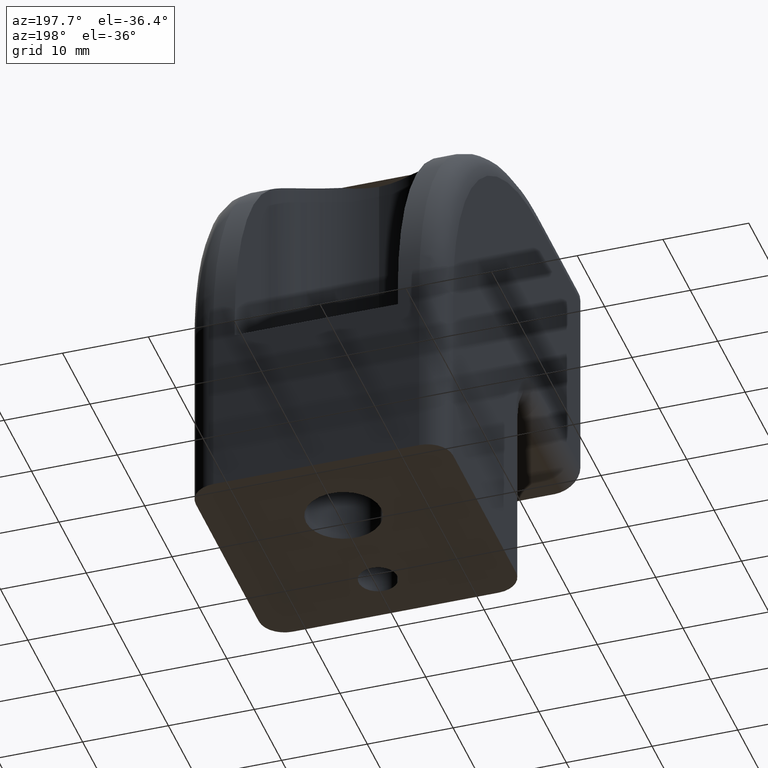
[diagram: clean part render]
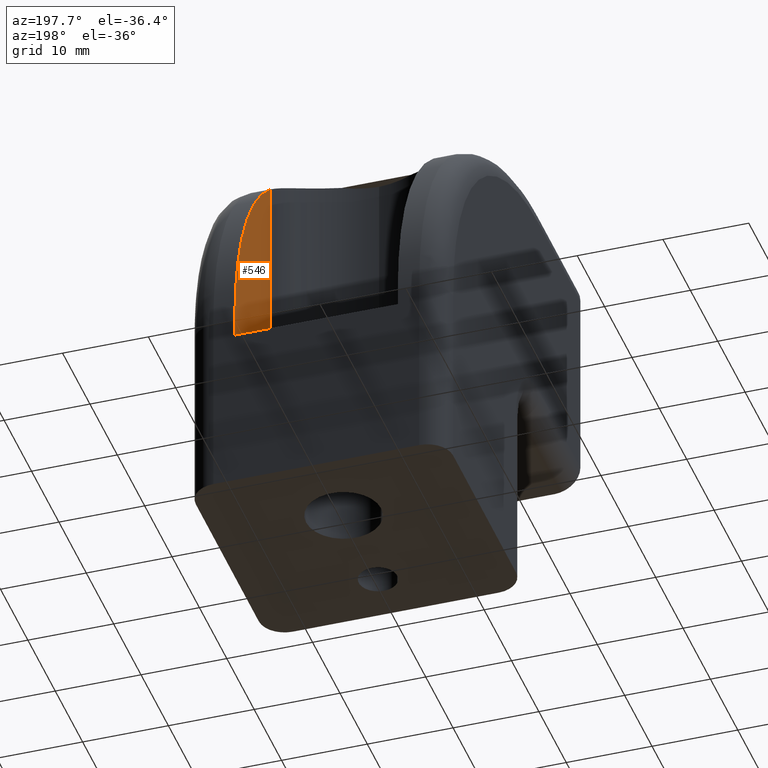
[diagram: same view with one face highlighted and labeled with its STEP entity id]
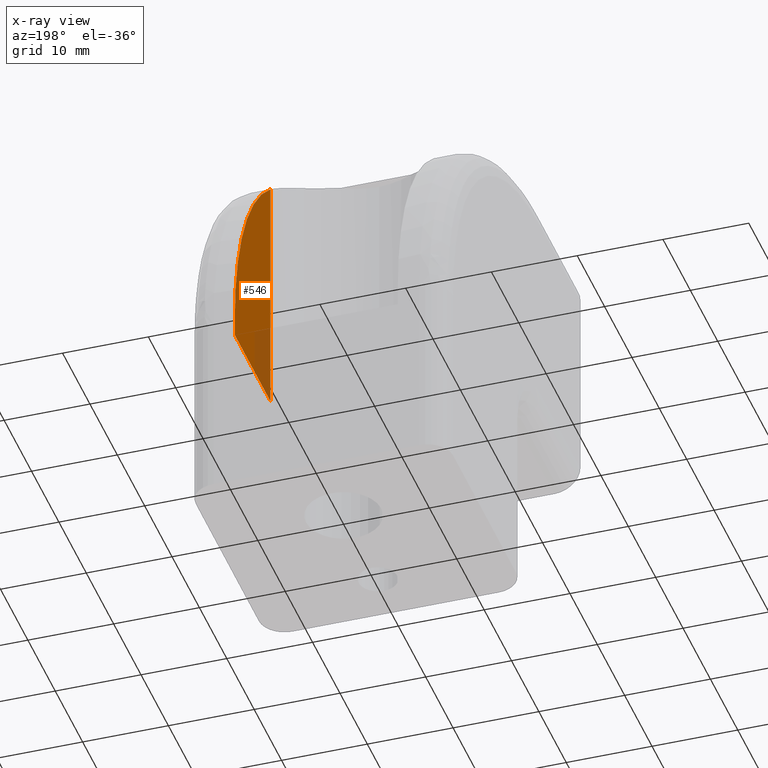
[diagram: x-ray of the same camera — body ghosted, the highlighted face saturated]
A machine part, auxiliary view. The second image highlights one B-rep face of the part: STEP entity #546.
The next image is the same camera in x-ray: the body ghosted, the highlighted face saturated — about 17% of this face is hidden behind the body in this view.
In plain terms, the highlighted planar face has unit normal (-1, 0, 0).
Its self-contained STEP definition (entity closure, byte-faithful):
#34=LINE('',#856,#72);
#36=LINE('',#862,#74);
#38=LINE('',#877,#76);
#72=VECTOR('',#670,13.);
#74=VECTOR('',#676,29.2213151776324);
#76=VECTOR('',#684,2.00000000000004);
#128=FACE_OUTER_BOUND('',#164,.T.);
#164=EDGE_LOOP('',(#393,#394,#395,#396));
#208=CIRCLE('',#591,35.);
#247=VERTEX_POINT('',#853);
#248=VERTEX_POINT('',#855);
#250=VERTEX_POINT('',#861);
#252=VERTEX_POINT('',#876);
#301=EDGE_CURVE('',#248,#247,#34,.T.);
#304=EDGE_CURVE('',#250,#247,#36,.T.);
#308=EDGE_CURVE('',#252,#248,#38,.T.);
#309=EDGE_CURVE('',#252,#250,#208,.T.);
#393=ORIENTED_EDGE('',*,*,#308,.T.);
#394=ORIENTED_EDGE('',*,*,#301,.T.);
#395=ORIENTED_EDGE('',*,*,#304,.F.);
#396=ORIENTED_EDGE('',*,*,#309,.F.);
#529=PLANE('',#590);
#546=ADVANCED_FACE('',(#128),#529,.T.);
#590=AXIS2_PLACEMENT_3D('',#875,#682,#683);
#591=AXIS2_PLACEMENT_3D('',#878,#685,#686);
#670=DIRECTION('',(0.,-1.,0.));
#676=DIRECTION('',(0.,0.,-1.));
#682=DIRECTION('center_axis',(-1.,0.,0.));
#683=DIRECTION('ref_axis',(0.,0.,1.));
#684=DIRECTION('',(0.,0.,-1.));
#685=DIRECTION('center_axis',(1.,0.,0.));
#686=DIRECTION('ref_axis',(0.,-1.,0.));
#853=CARTESIAN_POINT('',(9.49999999999979,-3.00499999999738,20.));
#855=CARTESIAN_POINT('',(9.5,9.99500000000262,20.));
#856=CARTESIAN_POINT('',(9.5,9.99500000000262,20.));
#861=CARTESIAN_POINT('',(9.49999999999979,-3.00499999999738,49.2213151776324));
#862=CARTESIAN_POINT('',(9.49999999999979,-3.00499999999738,49.2213151776324));
#875=CARTESIAN_POINT('Origin',(9.49999999999979,9.99500000000262,54.4607605939007));
#876=CARTESIAN_POINT('',(9.49999999999979,9.99500000000262,22.));
#877=CARTESIAN_POINT('',(9.49999999999979,9.99500000000262,22.));
#878=CARTESIAN_POINT('Origin',(9.49999999999979,-25.0049999999973,22.));